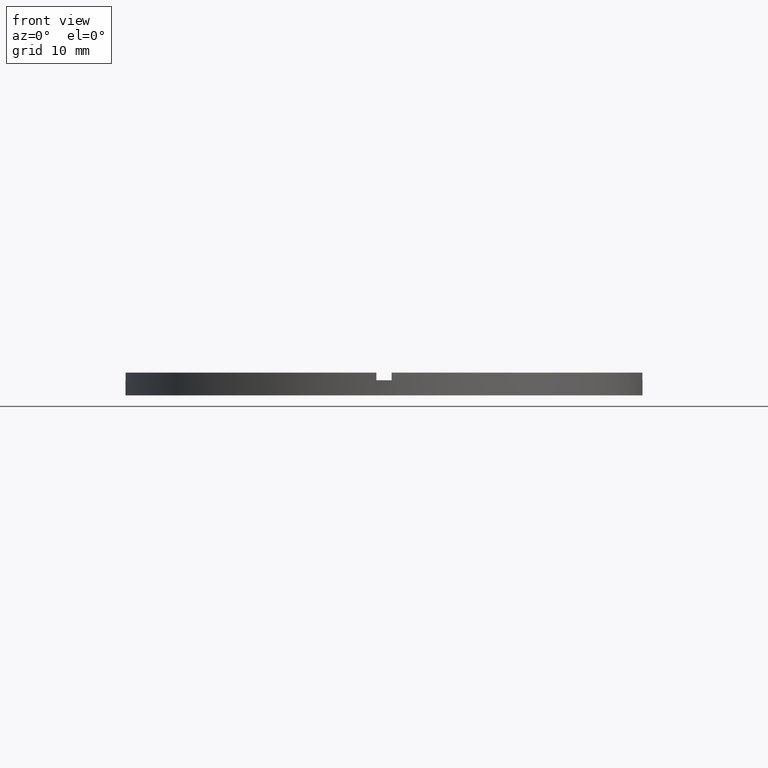
[diagram: clean part render]
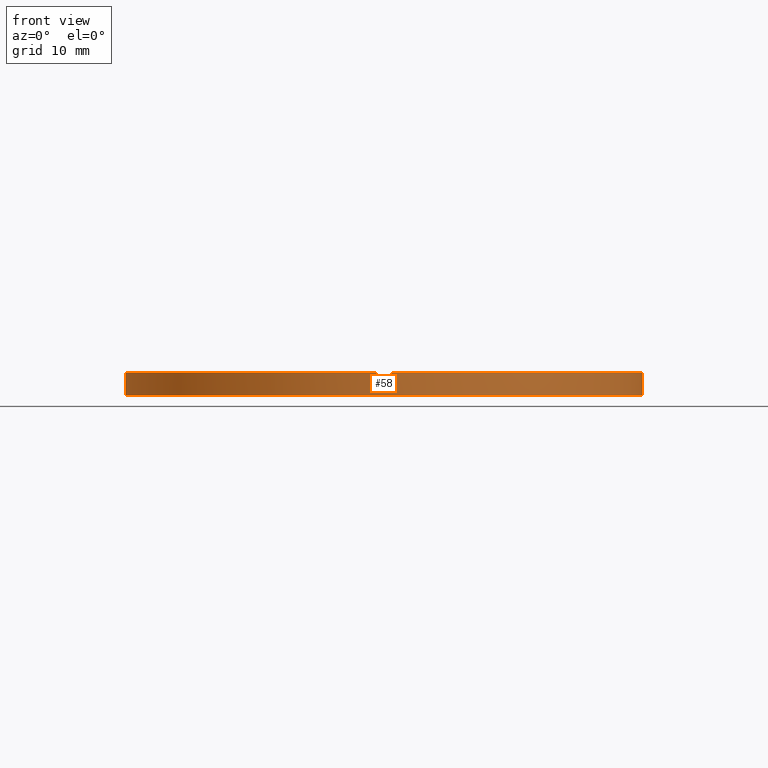
[diagram: same view with one face highlighted and labeled with its STEP entity id]
A machine part, front view. The second image highlights one B-rep face of the part: STEP entity #58.
In plain terms, the highlighted cylindrical surface (partial cylindrical patch) has radius 34 mm, axis along (-0, -0, -1).
Its self-contained STEP definition (entity closure, byte-faithful):
#11 = EDGE_CURVE ( 'NONE', #246, #400, #643, .T. ) ;
#14 = DIRECTION ( 'NONE',  ( -0.000000000000000000, -0.000000000000000000, -1.000000000000000000 ) ) ;
#19 = ORIENTED_EDGE ( 'NONE', *, *, #326, .T. ) ;
#20 = EDGE_CURVE ( 'NONE', #596, #73, #347, .T. ) ;
#21 = DIRECTION ( 'NONE',  ( 1.000000000000000000, 0.000000000000000000, 0.000000000000000000 ) ) ;
#41 = VECTOR ( 'NONE', #393, 1000.000000000000000 ) ;
#50 = CARTESIAN_POINT ( 'NONE',  ( -1.000000000000160760, -33.98529093593285211, 2.000000000000000000 ) ) ;
#58 = ADVANCED_FACE ( 'NONE', ( #615 ), #627, .T. ) ;
#68 = LINE ( 'NONE', #390, #581 ) ;
#73 = VERTEX_POINT ( 'NONE', #771 ) ;
#87 = ORIENTED_EDGE ( 'NONE', *, *, #634, .T. ) ;
#88 = AXIS2_PLACEMENT_3D ( 'NONE', #304, #494, #578 ) ;
#91 = DIRECTION ( 'NONE',  ( -1.000000000000000000, 0.000000000000000000, 0.000000000000000000 ) ) ;
#97 = ORIENTED_EDGE ( 'NONE', *, *, #734, .T. ) ;
#102 = DIRECTION ( 'NONE',  ( 0.000000000000000000, 0.000000000000000000, 1.000000000000000000 ) ) ;
#104 = ORIENTED_EDGE ( 'NONE', *, *, #422, .T. ) ;
#111 = EDGE_LOOP ( 'NONE', ( #414, #410, #87, #522, #19, #530, #372, #493, #104, #391, #362, #97 ) ) ;
#120 = VERTEX_POINT ( 'NONE', #259 ) ;
#133 = DIRECTION ( 'NONE',  ( -0.000000000000000000, 0.000000000000000000, 1.000000000000000000 ) ) ;
#141 = EDGE_CURVE ( 'NONE', #596, #120, #738, .T. ) ;
#159 = AXIS2_PLACEMENT_3D ( 'NONE', #323, #379, #270 ) ;
#166 = DIRECTION ( 'NONE',  ( -0.000000000000000000, -0.000000000000000000, -1.000000000000000000 ) ) ;
#179 = CARTESIAN_POINT ( 'NONE',  ( 0.000000000000000000, 0.000000000000000000, 2.000000000000000000 ) ) ;
#182 = CARTESIAN_POINT ( 'NONE',  ( 0.000000000000000000, 0.000000000000000000, 0.000000000000000000 ) ) ;
#186 = CIRCLE ( 'NONE', #88, 34.00000000000000000 ) ;
#189 = CARTESIAN_POINT ( 'NONE',  ( 33.98529093593285211, -1.000000000000158096, 3.000000000000000000 ) ) ;
#194 = CIRCLE ( 'NONE', #448, 34.00000000000000000 ) ;
#196 = CARTESIAN_POINT ( 'NONE',  ( 33.98529093593285211, -1.000000000000158096, 3.000000000000000000 ) ) ;
#211 = CARTESIAN_POINT ( 'NONE',  ( 0.9999999999998393507, -33.98529093593285921, 3.000000000000000000 ) ) ;
#246 = VERTEX_POINT ( 'NONE', #731 ) ;
#247 = CARTESIAN_POINT ( 'NONE',  ( -1.000000000000160760, -33.98529093593285211, 3.000000000000000000 ) ) ;
#250 = VERTEX_POINT ( 'NONE', #297 ) ;
#259 = CARTESIAN_POINT ( 'NONE',  ( -34.00000000000000000, 0.000000000000000000, 0.000000000000000000 ) ) ;
#268 = CARTESIAN_POINT ( 'NONE',  ( 34.00000000000000000, 4.163799117101000559E-15, 0.000000000000000000 ) ) ;
#270 = DIRECTION ( 'NONE',  ( 1.000000000000000000, 0.000000000000000000, 0.000000000000000000 ) ) ;
#297 = CARTESIAN_POINT ( 'NONE',  ( 0.9999999999998393507, -33.98529093593285921, 2.000000000000000000 ) ) ;
#304 = CARTESIAN_POINT ( 'NONE',  ( 0.000000000000000000, 0.000000000000000000, 3.000000000000000000 ) ) ;
#306 = VECTOR ( 'NONE', #539, 1000.000000000000000 ) ;
#315 = CIRCLE ( 'NONE', #536, 34.00000000000000000 ) ;
#319 = LINE ( 'NONE', #196, #41 ) ;
#320 = AXIS2_PLACEMENT_3D ( 'NONE', #469, #779, #91 ) ;
#323 = CARTESIAN_POINT ( 'NONE',  ( 0.000000000000000000, 0.000000000000000000, 3.000000000000000000 ) ) ;
#324 = CIRCLE ( 'NONE', #676, 34.00000000000000000 ) ;
#326 = EDGE_CURVE ( 'NONE', #652, #250, #455, .T. ) ;
#347 = CIRCLE ( 'NONE', #702, 34.00000000000000000 ) ;
#353 = EDGE_CURVE ( 'NONE', #394, #385, #194, .T. ) ;
#354 = VERTEX_POINT ( 'NONE', #189 ) ;
#362 = ORIENTED_EDGE ( 'NONE', *, *, #141, .T. ) ;
#367 = CARTESIAN_POINT ( 'NONE',  ( -34.00000000000000000, 0.000000000000000000, 3.000000000000000000 ) ) ;
#372 = ORIENTED_EDGE ( 'NONE', *, *, #689, .T. ) ;
#379 = DIRECTION ( 'NONE',  ( 0.000000000000000000, 0.000000000000000000, 1.000000000000000000 ) ) ;
#385 = VERTEX_POINT ( 'NONE', #512 ) ;
#390 = CARTESIAN_POINT ( 'NONE',  ( 34.00000000000000000, 4.163799117101000559E-15, 3.000000000000000000 ) ) ;
#391 = ORIENTED_EDGE ( 'NONE', *, *, #20, .F. ) ;
#393 = DIRECTION ( 'NONE',  ( 0.000000000000000000, 0.000000000000000000, 1.000000000000000000 ) ) ;
#394 = VERTEX_POINT ( 'NONE', #653 ) ;
#400 = VERTEX_POINT ( 'NONE', #247 ) ;
#403 = DIRECTION ( 'NONE',  ( 0.000000000000000000, 0.000000000000000000, 1.000000000000000000 ) ) ;
#406 = EDGE_CURVE ( 'NONE', #652, #354, #186, .T. ) ;
#410 = ORIENTED_EDGE ( 'NONE', *, *, #353, .F. ) ;
#414 = ORIENTED_EDGE ( 'NONE', *, *, #491, .F. ) ;
#422 = EDGE_CURVE ( 'NONE', #246, #73, #714, .T. ) ;
#429 = DIRECTION ( 'NONE',  ( -0.000000000000000000, -0.000000000000000000, -1.000000000000000000 ) ) ;
#441 = CARTESIAN_POINT ( 'NONE',  ( 0.9999999999998393507, -33.98529093593285921, 3.000000000000000000 ) ) ;
#444 = CARTESIAN_POINT ( 'NONE',  ( 0.000000000000000000, 0.000000000000000000, 2.000000000000000000 ) ) ;
#448 = AXIS2_PLACEMENT_3D ( 'NONE', #444, #403, #21 ) ;
#455 = LINE ( 'NONE', #441, #713 ) ;
#469 = CARTESIAN_POINT ( 'NONE',  ( 0.000000000000000000, 0.000000000000000000, 3.000000000000000000 ) ) ;
#476 = VECTOR ( 'NONE', #429, 1000.000000000000000 ) ;
#491 = EDGE_CURVE ( 'NONE', #385, #683, #68, .T. ) ;
#493 = ORIENTED_EDGE ( 'NONE', *, *, #11, .F. ) ;
#494 = DIRECTION ( 'NONE',  ( 0.000000000000000000, 0.000000000000000000, 1.000000000000000000 ) ) ;
#511 = DIRECTION ( 'NONE',  ( 1.000000000000000000, 0.000000000000000000, 0.000000000000000000 ) ) ;
#512 = CARTESIAN_POINT ( 'NONE',  ( 34.00000000000000000, 4.163799117101000559E-15, 2.000000000000000000 ) ) ;
#522 = ORIENTED_EDGE ( 'NONE', *, *, #406, .F. ) ;
#529 = CARTESIAN_POINT ( 'NONE',  ( 0.000000000000000000, 0.000000000000000000, 2.000000000000000000 ) ) ;
#530 = ORIENTED_EDGE ( 'NONE', *, *, #667, .F. ) ;
#534 = DIRECTION ( 'NONE',  ( -0.000000000000000000, -0.000000000000000000, -1.000000000000000000 ) ) ;
#536 = AXIS2_PLACEMENT_3D ( 'NONE', #182, #783, #732 ) ;
#539 = DIRECTION ( 'NONE',  ( 0.000000000000000000, 0.000000000000000000, 1.000000000000000000 ) ) ;
#578 = DIRECTION ( 'NONE',  ( 1.000000000000000000, 0.000000000000000000, 0.000000000000000000 ) ) ;
#581 = VECTOR ( 'NONE', #534, 1000.000000000000000 ) ;
#596 = VERTEX_POINT ( 'NONE', #617 ) ;
#603 = LINE ( 'NONE', #661, #306 ) ;
#615 = FACE_OUTER_BOUND ( 'NONE', #111, .T. ) ;
#617 = CARTESIAN_POINT ( 'NONE',  ( -34.00000000000000000, 0.000000000000000000, 2.000000000000000000 ) ) ;
#627 = CYLINDRICAL_SURFACE ( 'NONE', #320, 34.00000000000000000 ) ;
#634 = EDGE_CURVE ( 'NONE', #394, #354, #319, .T. ) ;
#643 = CIRCLE ( 'NONE', #159, 34.00000000000000000 ) ;
#652 = VERTEX_POINT ( 'NONE', #211 ) ;
#653 = CARTESIAN_POINT ( 'NONE',  ( 33.98529093593285211, -1.000000000000158096, 2.000000000000000000 ) ) ;
#659 = CARTESIAN_POINT ( 'NONE',  ( -33.98529093593285211, -1.000000000000026423, 3.000000000000000000 ) ) ;
#661 = CARTESIAN_POINT ( 'NONE',  ( -1.000000000000160760, -33.98529093593285211, 3.000000000000000000 ) ) ;
#664 = VERTEX_POINT ( 'NONE', #50 ) ;
#667 = EDGE_CURVE ( 'NONE', #664, #250, #324, .T. ) ;
#676 = AXIS2_PLACEMENT_3D ( 'NONE', #179, #133, #761 ) ;
#683 = VERTEX_POINT ( 'NONE', #268 ) ;
#689 = EDGE_CURVE ( 'NONE', #664, #400, #603, .T. ) ;
#702 = AXIS2_PLACEMENT_3D ( 'NONE', #529, #102, #511 ) ;
#712 = VECTOR ( 'NONE', #166, 1000.000000000000000 ) ;
#713 = VECTOR ( 'NONE', #14, 1000.000000000000000 ) ;
#714 = LINE ( 'NONE', #659, #712 ) ;
#731 = CARTESIAN_POINT ( 'NONE',  ( -33.98529093593285211, -1.000000000000026423, 3.000000000000000000 ) ) ;
#732 = DIRECTION ( 'NONE',  ( 1.000000000000000000, 0.000000000000000000, 0.000000000000000000 ) ) ;
#734 = EDGE_CURVE ( 'NONE', #120, #683, #315, .T. ) ;
#738 = LINE ( 'NONE', #367, #476 ) ;
#761 = DIRECTION ( 'NONE',  ( 1.000000000000000000, 0.000000000000000000, 0.000000000000000000 ) ) ;
#771 = CARTESIAN_POINT ( 'NONE',  ( -33.98529093593285211, -1.000000000000026423, 2.000000000000000000 ) ) ;
#779 = DIRECTION ( 'NONE',  ( -0.000000000000000000, -0.000000000000000000, -1.000000000000000000 ) ) ;
#783 = DIRECTION ( 'NONE',  ( 0.000000000000000000, 0.000000000000000000, 1.000000000000000000 ) ) ;